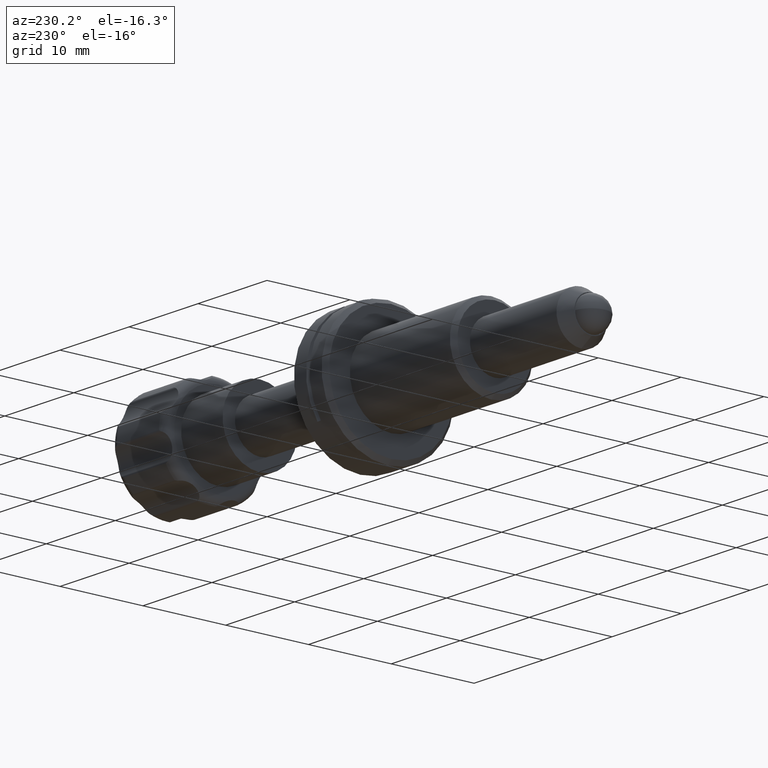
[diagram: clean part render]
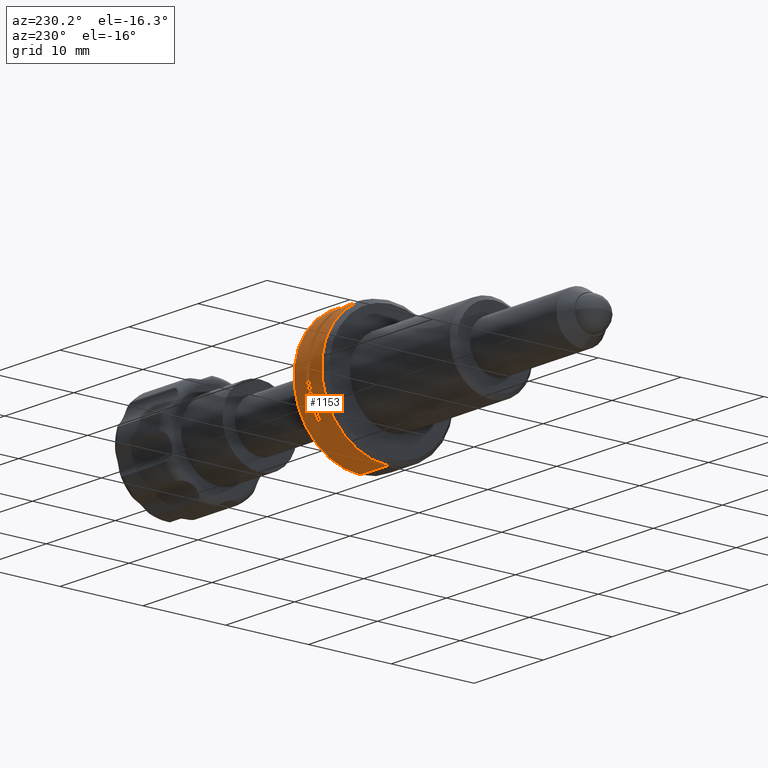
[diagram: same view with one face highlighted and labeled with its STEP entity id]
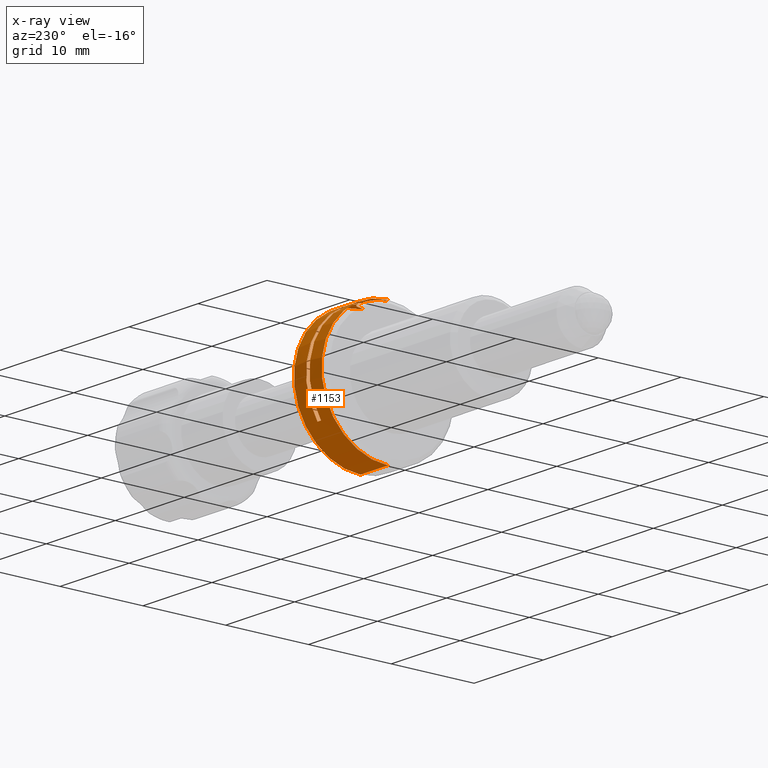
[diagram: x-ray of the same camera — body ghosted, the highlighted face saturated]
A machine part, auxiliary view. The second image highlights one B-rep face of the part: STEP entity #1153.
The next image is the same camera in x-ray: the body ghosted, the highlighted face saturated — about 0% of this face is hidden behind the body in this view.
In plain terms, the highlighted cylindrical surface (partial cylindrical patch) has radius 8 mm, axis along (-1, 0, 0).
Its self-contained STEP definition (entity closure, byte-faithful):
#24 = CARTESIAN_POINT ( 'NONE',  ( 3.029468212116788628, 0.7546750653301825817, 7.964771715704664246 ) ) ;
#80 = CARTESIAN_POINT ( 'NONE',  ( 3.128534374602756074, 0.9225400976433797418, 7.947077620469063852 ) ) ;
#89 = VERTEX_POINT ( 'NONE', #2521 ) ;
#101 = CYLINDRICAL_SURFACE ( 'NONE', #2697, 8.000000000000000000 ) ;
#118 = VERTEX_POINT ( 'NONE', #795 ) ;
#161 = EDGE_CURVE ( 'NONE', #313, #118, #543, .T. ) ;
#217 = DIRECTION ( 'NONE',  ( 1.000000000000000000, -0.000000000000000000, -0.000000000000000000 ) ) ;
#282 = CARTESIAN_POINT ( 'NONE',  ( 5.127175073062909760, 1.529256760293105977, 7.852541605875016373 ) ) ;
#288 = DIRECTION ( 'NONE',  ( 1.000000000000000000, 0.000000000000000000, 1.040834085586084257E-16 ) ) ;
#290 = EDGE_CURVE ( 'NONE', #3268, #1602, #424, .T. ) ;
#313 = VERTEX_POINT ( 'NONE', #3061 ) ;
#315 = CARTESIAN_POINT ( 'NONE',  ( 2.500000000000005773, -9.797174393178825657E-16, 8.000000000000000000 ) ) ;
#377 = CARTESIAN_POINT ( 'NONE',  ( 2.500000000000005773, 0.000000000000000000, 0.000000000000000000 ) ) ;
#424 = CIRCLE ( 'NONE', #3362, 8.000000000000000000 ) ;
#445 = DIRECTION ( 'NONE',  ( 0.000000000000000000, 0.000000000000000000, -1.000000000000000000 ) ) ;
#470 = ORIENTED_EDGE ( 'NONE', *, *, #161, .F. ) ;
#543 = B_SPLINE_CURVE_WITH_KNOTS ( 'NONE', 3,
 ( #3212, #1459, #2384, #2325, #1145, #1498, #3234, #1421, #1801, #2344, #282, #2637, #2693, #3513 ),
 .UNSPECIFIED., .F., .F.,
 ( 4, 2, 2, 2, 2, 2, 4 ),
 ( 9.517179564045209185E-19, 0.0005840318241154251458, 0.001168063648230849207, 0.001460079560288560533, 0.001752095472346271859, 0.002044111384403982969, 0.002336127296461694512 ),
 .UNSPECIFIED. ) ;
#546 = LINE ( 'NONE', #2927, #3062 ) ;
#556 = EDGE_CURVE ( 'NONE', #89, #3268, #546, .T. ) ;
#608 = VECTOR ( 'NONE', #1607, 1000.000000000000000 ) ;
#684 = B_SPLINE_CURVE_WITH_KNOTS ( 'NONE', 3,
 ( #1960, #3337, #3048, #3261, #2989, #2388, #1483, #3616, #2076, #1806, #80, #24, #2095, #2678, #1557, #3579 ),
 .UNSPECIFIED., .F., .F.,
 ( 4, 2, 2, 2, 2, 2, 2, 4 ),
 ( 0.002835874755387478210, 0.003127960128604551863, 0.003420045501821626383, 0.003712130875038701337, 0.004004216248255775858, 0.004296301621472850378, 0.004588386994689925766, 0.005172557741124073939 ),
 .UNSPECIFIED. ) ;
#720 = CARTESIAN_POINT ( 'NONE',  ( -30.35644179797201048, 0.000000000000000000, 0.000000000000000000 ) ) ;
#749 = EDGE_CURVE ( 'NONE', #2241, #1784, #1624, .T. ) ;
#756 = VECTOR ( 'NONE', #1503, 1000.000000000000000 ) ;
#795 = CARTESIAN_POINT ( 'NONE',  ( 4.750000000000000888, 1.630950643030008917, 7.831985699680509505 ) ) ;
#841 = DIRECTION ( 'NONE',  ( -1.000000000000000000, -0.000000000000000000, 1.040834085586084257E-16 ) ) ;
#994 = AXIS2_PLACEMENT_3D ( 'NONE', #2526, #3704, #445 ) ;
#1020 = CARTESIAN_POINT ( 'NONE',  ( 4.750000000000000888, 6.614378277661476346, -4.500000000000000888 ) ) ;
#1089 = CARTESIAN_POINT ( 'NONE',  ( 4.250000000000000000, 0.000000000000000000, 0.000000000000000000 ) ) ;
#1109 = DIRECTION ( 'NONE',  ( -1.084202172485504434E-16, 0.000000000000000000, 1.000000000000000000 ) ) ;
#1145 = CARTESIAN_POINT ( 'NONE',  ( 5.878550300574782561, 0.9274612557324271034, 7.947460220116605356 ) ) ;
#1153 = ADVANCED_FACE ( 'NONE', ( #2800 ), #101, .T. ) ;
#1185 = CIRCLE ( 'NONE', #994, 8.000000000000000000 ) ;
#1225 = DIRECTION ( 'NONE',  ( 1.000000000000000000, 0.000000000000000000, 0.000000000000000000 ) ) ;
#1340 = EDGE_CURVE ( 'NONE', #1947, #2569, #684, .T. ) ;
#1344 = DIRECTION ( 'NONE',  ( -1.000000000000000000, 0.000000000000000000, 0.000000000000000000 ) ) ;
#1368 = EDGE_CURVE ( 'NONE', #2569, #1602, #2518, .T. ) ;
#1421 = CARTESIAN_POINT ( 'NONE',  ( 5.468055333128233997, 1.339692283324673383, 7.887273494992031786 ) ) ;
#1451 = CARTESIAN_POINT ( 'NONE',  ( 2.500000000000005773, 0.000000000000000000, -8.000000000000000000 ) ) ;
#1452 = ORIENTED_EDGE ( 'NONE', *, *, #1368, .F. ) ;
#1459 = CARTESIAN_POINT ( 'NONE',  ( 6.150000000000002132, 0.1975202131461037125, 8.000000000000000000 ) ) ;
#1483 = CARTESIAN_POINT ( 'NONE',  ( 3.533099981453266647, 1.340543924859564306, 7.887129590209504215 ) ) ;
#1496 = CIRCLE ( 'NONE', #3679, 8.000000000000000000 ) ;
#1498 = CARTESIAN_POINT ( 'NONE',  ( 5.687748513388988236, 1.149467179595532462, 7.917341869961020961 ) ) ;
#1503 = DIRECTION ( 'NONE',  ( -1.000000000000000000, 0.000000000000000000, 0.000000000000000000 ) ) ;
#1557 = CARTESIAN_POINT ( 'NONE',  ( 2.850000000000000089, 0.1948791552277828465, 7.999999999999998224 ) ) ;
#1572 = DIRECTION ( 'NONE',  ( 0.000000000000000000, 0.000000000000000000, 1.000000000000000000 ) ) ;
#1599 = DIRECTION ( 'NONE',  ( 0.000000000000000000, 0.000000000000000000, -1.000000000000000000 ) ) ;
#1602 = VERTEX_POINT ( 'NONE', #315 ) ;
#1607 = DIRECTION ( 'NONE',  ( -1.000000000000000000, 0.000000000000000000, 0.000000000000000000 ) ) ;
#1624 = LINE ( 'NONE', #2608, #3006 ) ;
#1784 = VERTEX_POINT ( 'NONE', #1020 ) ;
#1794 = EDGE_CURVE ( 'NONE', #2652, #313, #1908, .T. ) ;
#1801 = CARTESIAN_POINT ( 'NONE',  ( 5.386270206046190445, 1.395180310099567444, 7.877549552829113289 ) ) ;
#1806 = CARTESIAN_POINT ( 'NONE',  ( 3.184962371079917975, 1.001303668292288673, 7.937437864738328130 ) ) ;
#1908 = LINE ( 'NONE', #3133, #608 ) ;
#1947 = VERTEX_POINT ( 'NONE', #2336 ) ;
#1960 = CARTESIAN_POINT ( 'NONE',  ( 4.249999999999998224, 1.630950643030010472, 7.831985699680511281 ) ) ;
#2054 = ORIENTED_EDGE ( 'NONE', *, *, #749, .T. ) ;
#2076 = CARTESIAN_POINT ( 'NONE',  ( 3.311515751002519714, 1.148668007518377721, 7.917454812073200898 ) ) ;
#2095 = CARTESIAN_POINT ( 'NONE',  ( 2.986906842086526126, 0.6652157703864264304, 7.972819368972080767 ) ) ;
#2186 = ORIENTED_EDGE ( 'NONE', *, *, #1340, .F. ) ;
#2241 = VERTEX_POINT ( 'NONE', #3107 ) ;
#2286 = EDGE_CURVE ( 'NONE', #2652, #89, #1185, .T. ) ;
#2298 = ORIENTED_EDGE ( 'NONE', *, *, #2329, .T. ) ;
#2325 = CARTESIAN_POINT ( 'NONE',  ( 5.978453089463647174, 0.7584395906208759586, 7.966104901440968611 ) ) ;
#2329 = EDGE_CURVE ( 'NONE', #1784, #118, #1496, .T. ) ;
#2336 = CARTESIAN_POINT ( 'NONE',  ( 4.249999999999998224, 1.630950643030010472, 7.831985699680511281 ) ) ;
#2344 = CARTESIAN_POINT ( 'NONE',  ( 5.215821504139401377, 1.489833061126743408, 7.860197994003800481 ) ) ;
#2360 = ORIENTED_EDGE ( 'NONE', *, *, #2286, .T. ) ;
#2383 = EDGE_CURVE ( 'NONE', #1947, #2241, #3559, .T. ) ;
#2384 = CARTESIAN_POINT ( 'NONE',  ( 6.115154137422800673, 0.3902963780664307492, 7.992604497324463431 ) ) ;
#2388 = CARTESIAN_POINT ( 'NONE',  ( 3.613348921248015877, 1.394936884489105910, 7.877592750489485596 ) ) ;
#2404 = CARTESIAN_POINT ( 'NONE',  ( -30.35644179797201048, -9.797174393178825657E-16, 8.000000000000000000 ) ) ;
#2518 = LINE ( 'NONE', #2404, #756 ) ;
#2521 = CARTESIAN_POINT ( 'NONE',  ( 6.500000000000002665, 0.000000000000000000, -8.000000000000000000 ) ) ;
#2526 = CARTESIAN_POINT ( 'NONE',  ( 6.500000000000002665, 0.000000000000000000, 0.000000000000000000 ) ) ;
#2569 = VERTEX_POINT ( 'NONE', #3084 ) ;
#2608 = CARTESIAN_POINT ( 'NONE',  ( -30.35644179797201048, 6.614378277661476346, -4.500000000000000888 ) ) ;
#2637 = CARTESIAN_POINT ( 'NONE',  ( 4.943019352007904210, 1.592390864367204673, 7.839982604953934953 ) ) ;
#2652 = VERTEX_POINT ( 'NONE', #3235 ) ;
#2678 = CARTESIAN_POINT ( 'NONE',  ( 2.885381863884658227, 0.3916120239585191842, 7.992501665210951067 ) ) ;
#2693 = CARTESIAN_POINT ( 'NONE',  ( 4.846547942710883738, 1.616151307574414497, 7.835067547196997495 ) ) ;
#2697 = AXIS2_PLACEMENT_3D ( 'NONE', #720, #1344, #1599 ) ;
#2795 = ORIENTED_EDGE ( 'NONE', *, *, #556, .T. ) ;
#2800 = FACE_OUTER_BOUND ( 'NONE', #3251, .T. ) ;
#2905 = DIRECTION ( 'NONE',  ( -1.000000000000000000, 0.000000000000000000, 0.000000000000000000 ) ) ;
#2927 = CARTESIAN_POINT ( 'NONE',  ( -30.35644179797201048, 0.000000000000000000, -8.000000000000000000 ) ) ;
#2973 = DIRECTION ( 'NONE',  ( -1.084202172485504434E-16, 0.000000000000000000, -1.000000000000000000 ) ) ;
#2989 = CARTESIAN_POINT ( 'NONE',  ( 3.783735348336710658, 1.489618741805397439, 7.860238702376334707 ) ) ;
#3006 = VECTOR ( 'NONE', #217, 1000.000000000000000 ) ;
#3048 = CARTESIAN_POINT ( 'NONE',  ( 4.058569458828396037, 1.592833618600822509, 7.839892322109172085 ) ) ;
#3061 = CARTESIAN_POINT ( 'NONE',  ( 6.150000000000001243, -9.797174393178825657E-16, 8.000000000000000000 ) ) ;
#3062 = VECTOR ( 'NONE', #2905, 1000.000000000000000 ) ;
#3084 = CARTESIAN_POINT ( 'NONE',  ( 2.850000000000000089, -9.797177280130657527E-16, 8.000000000000000000 ) ) ;
#3107 = CARTESIAN_POINT ( 'NONE',  ( 4.250000000000001776, 6.614378277661474570, -4.500000000000000888 ) ) ;
#3116 = AXIS2_PLACEMENT_3D ( 'NONE', #1089, #841, #2973 ) ;
#3133 = CARTESIAN_POINT ( 'NONE',  ( -30.35644179797201048, -9.797174393178825657E-16, 8.000000000000000000 ) ) ;
#3212 = CARTESIAN_POINT ( 'NONE',  ( 6.150000000000001243, -9.797174393178825657E-16, 8.000000000000000000 ) ) ;
#3234 = CARTESIAN_POINT ( 'NONE',  ( 5.618341358380196660, 1.217053469710360769, 7.907125865361536832 ) ) ;
#3235 = CARTESIAN_POINT ( 'NONE',  ( 6.500000000000002665, -9.797174393178825657E-16, 8.000000000000000000 ) ) ;
#3251 = EDGE_LOOP ( 'NONE', ( #3326, #2360, #2795, #3259, #1452, #2186, #3818, #2054, #2298, #470 ) ) ;
#3259 = ORIENTED_EDGE ( 'NONE', *, *, #290, .T. ) ;
#3261 = CARTESIAN_POINT ( 'NONE',  ( 3.874302747824478921, 1.529863656619127710, 7.852423049668632693 ) ) ;
#3268 = VERTEX_POINT ( 'NONE', #1451 ) ;
#3326 = ORIENTED_EDGE ( 'NONE', *, *, #1794, .F. ) ;
#3337 = CARTESIAN_POINT ( 'NONE',  ( 4.153069607854822820, 1.616092683876031222, 7.835079755130241352 ) ) ;
#3362 = AXIS2_PLACEMENT_3D ( 'NONE', #377, #1225, #1572 ) ;
#3513 = CARTESIAN_POINT ( 'NONE',  ( 4.750000000000000888, 1.630950643030008917, 7.831985699680509505 ) ) ;
#3559 = CIRCLE ( 'NONE', #3116, 8.000000000000000000 ) ;
#3561 = CARTESIAN_POINT ( 'NONE',  ( 4.750000000000000888, 0.000000000000000000, 0.000000000000000000 ) ) ;
#3579 = CARTESIAN_POINT ( 'NONE',  ( 2.850000000000000089, -9.797177280130657527E-16, 8.000000000000000000 ) ) ;
#3616 = CARTESIAN_POINT ( 'NONE',  ( 3.382349324590555817, 1.217707119179472386, 7.907026024943629494 ) ) ;
#3679 = AXIS2_PLACEMENT_3D ( 'NONE', #3561, #288, #1109 ) ;
#3704 = DIRECTION ( 'NONE',  ( -1.000000000000000000, 0.000000000000000000, 0.000000000000000000 ) ) ;
#3818 = ORIENTED_EDGE ( 'NONE', *, *, #2383, .T. ) ;